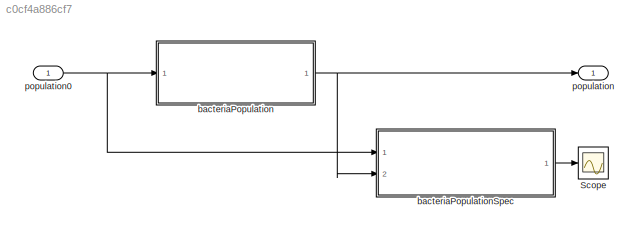
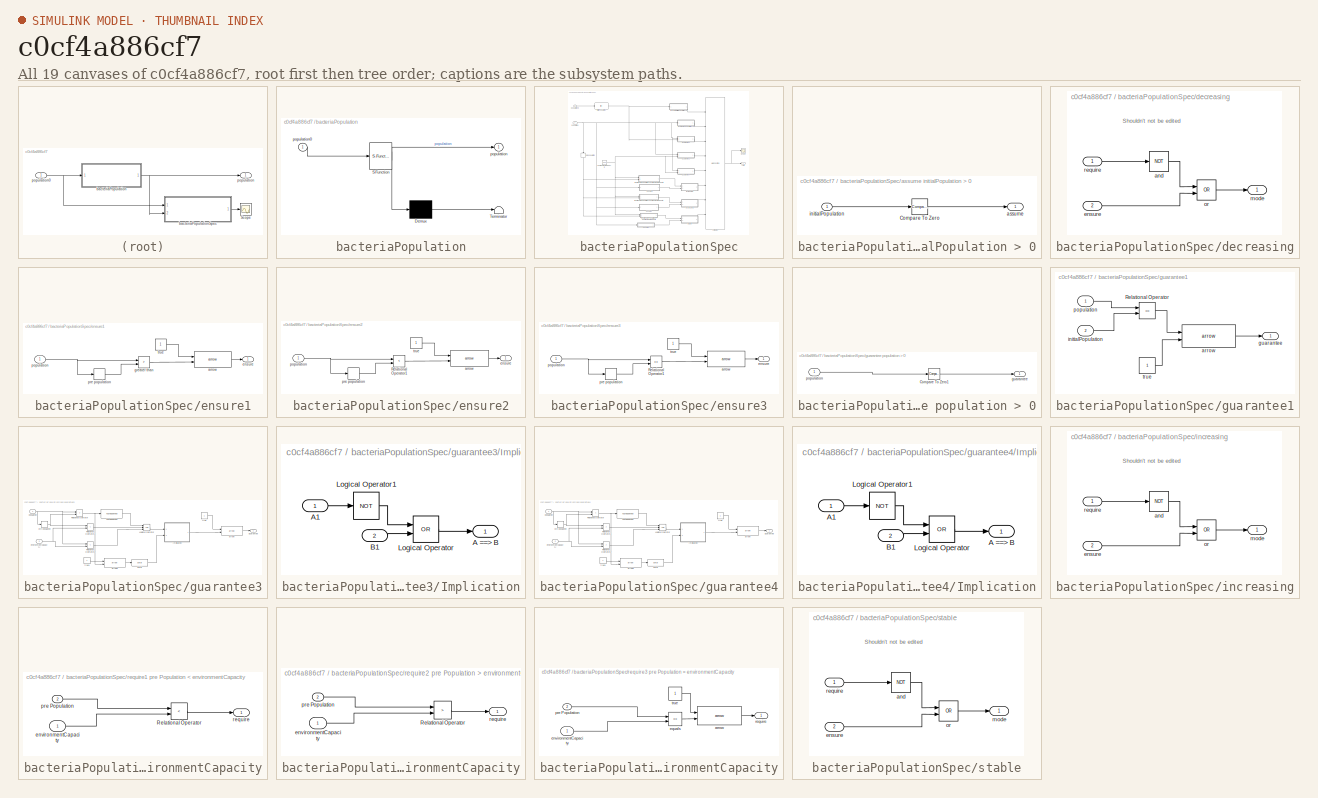
[diagram: thumbnail index - all 19 canvases of the model, root first then tree order]
MODEL slx_c0cf4a886cf7
KIND model
CONFIG AbsTol = auto
CONFIG EnableMultiTasking = off
CONFIG FixedStep = 1
CONFIG MaxStep = auto
CONFIG MinStep = auto
CONFIG RelTol = 1e-3
CONFIG SampleTimeConstraint = Unconstrained
CONFIG Solver = FixedStepDiscrete
CONFIG SolverName = FixedStepDiscrete
CONFIG StartTime = 0.0
CONFIG StopTime = 10.0
WORKSPACE source: MAT-file member
WORKSPACE MCOS: class17 (value not decoded)
BLOCK [Scope] Scope
  NumInputPorts = 1
  Ports = [1]
  ScopeSpecificationString = C++SS(StrPVP('Open','off'),StrPVP('TimeRange','auto'),StrPVP('TickLabels','OneTimeTick'),StrPVP('ShowLegends','off'),StrPVP('LimitDataPoints','off'),StrPVP('MaxDataPoints','5000'),StrPVP('SaveToWorkspace','off'),StrPVP('SaveName','ScopeData1'),StrPVP('YMin','0.9'),StrPVP('YMax','1.1'),StrPVP('BlockParamSampleInput','off'),StrPVP('BlockParamSampleTime','-1'),StrPVP('ZoomMode','on'),StrPVP('Grid','o...<+623ch>
BLOCK [SubSystem] bacteriaPopulation
  ErrorFcn = Stateflow.Translate.translate
  PermitHierarchicalResolution = ExplicitOnly
  Ports = [1, 1]
  RequestExecContextInheritance = off
  SFBlockType = Chart
  TreatAsAtomicUnit = on
  Variant = off
BLOCK [Demux] bacteriaPopulation/ Demux 
  Outputs = 1
  Ports = [1, 1]
BLOCK [S-Function] bacteriaPopulation/ SFunction 
  EnableBusSupport = on
  FunctionName = sf_sfun
  PortCounts = [1 2]
  Ports = [1, 2]
  SFcnIsStateOwnerBlock = off
  SFunctionDeploymentMode = off
  Tag = Stateflow S-Function truthTable1 3
BLOCK [Terminator] bacteriaPopulation/ Terminator 
BLOCK [Outport] bacteriaPopulation/population
  IconDisplay = Port number
BLOCK [Inport] bacteriaPopulation/population0
  IconDisplay = Port number
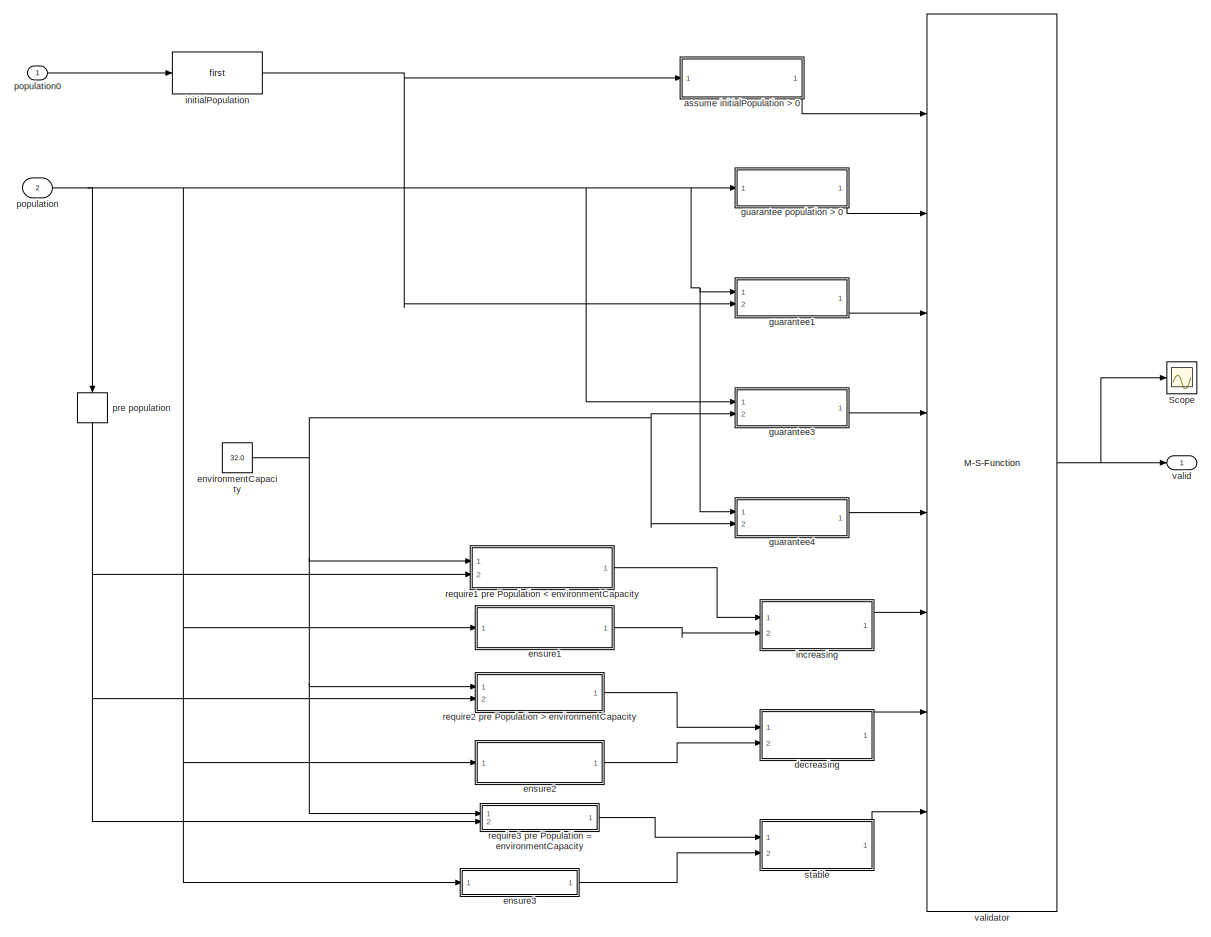
[diagram: bacteriaPopulationSpec - part 1/1, most of the canvas]
BLOCK [SubSystem] bacteriaPopulationSpec
  Ports = [2, 1]
  RequestExecContextInheritance = off
  Variant = off
BLOCK [Scope] bacteriaPopulationSpec/Scope
  NumInputPorts = 1
  Ports = [1]
  ScopeSpecificationString = C++SS(StrPVP('Open','off'),StrPVP('TimeRange','auto'),StrPVP('TickLabels','OneTimeTick'),StrPVP('ShowLegends','off'),StrPVP('LimitDataPoints','off'),StrPVP('MaxDataPoints','5000'),StrPVP('SaveToWorkspace','off'),StrPVP('SaveName','ScopeData1'),StrPVP('YMin','-10'),StrPVP('YMax','10'),StrPVP('BlockParamSampleInput','off'),StrPVP('BlockParamSampleTime','-1'),StrPVP('ZoomMode','on'),StrPVP('Grid','on...<+571ch>
BLOCK [SubSystem] bacteriaPopulationSpec/assume initialPopulation > 0
  Ports = [1, 1]
  RequestExecContextInheritance = off
  Variant = off
BLOCK [Reference] bacteriaPopulationSpec/assume initialPopulation > 0/Compare To Zero  REF=simulink/Logic and Bit
Operations/Compare
To Zero
  Ports = [1, 1]
  SourceBlock = simulink/Logic and Bit\nOperations/Compare\nTo Zero
  SourceProductBaseCode = SL
  SourceProductName = Simulink
  SourceType = Compare To Zero
BLOCK [Outport] bacteriaPopulationSpec/assume initialPopulation > 0/assume
  IconDisplay = Port number
  OutDataTypeStr = boolean
BLOCK [Inport] bacteriaPopulationSpec/assume initialPopulation > 0/initialPopulation
  IconDisplay = Port number
BLOCK [SubSystem] bacteriaPopulationSpec/decreasing
  Ports = [2, 1]
  RequestExecContextInheritance = off
  Variant = off
BLOCK [Logic] bacteriaPopulationSpec/decreasing/and
  AllPortsSameDT = off
  IconShape = distinctive
  Operator = NOT
  OutDataTypeStr = boolean
  Ports = [1, 1]
BLOCK [Inport] bacteriaPopulationSpec/decreasing/ensure
  IconDisplay = Port number
  OutDataTypeStr = boolean
  Port = 2
BLOCK [Outport] bacteriaPopulationSpec/decreasing/mode
  IconDisplay = Port number
BLOCK [Logic] bacteriaPopulationSpec/decreasing/or
  AllPortsSameDT = off
  IconShape = distinctive
  Operator = OR
  OutDataTypeStr = boolean
  Ports = [2, 1]
BLOCK [Inport] bacteriaPopulationSpec/decreasing/require
  IconDisplay = Port number
  OutDataTypeStr = boolean
BLOCK [SubSystem] bacteriaPopulationSpec/ensure1
  Ports = [1, 1]
  RequestExecContextInheritance = off
  Variant = off
BLOCK [Reference] bacteriaPopulationSpec/ensure1/arrow  REF=Kind/arrow
  Ports = [2, 1]
  SourceBlock = Kind/arrow
BLOCK [Outport] bacteriaPopulationSpec/ensure1/ensure
  IconDisplay = Port number
  OutDataTypeStr = boolean
BLOCK [RelationalOperator] bacteriaPopulationSpec/ensure1/greater than
  InputSameDT = off
  Operator = >
  OutDataTypeStr = boolean
  Ports = [2, 1]
BLOCK [Inport] bacteriaPopulationSpec/ensure1/population
  IconDisplay = Port number
BLOCK [Memory] bacteriaPopulationSpec/ensure1/pre population
BLOCK [Constant] bacteriaPopulationSpec/ensure1/true
  OutDataTypeStr = boolean
BLOCK [SubSystem] bacteriaPopulationSpec/ensure2
  Ports = [1, 1]
  RequestExecContextInheritance = off
  Variant = off
BLOCK [RelationalOperator] bacteriaPopulationSpec/ensure2/Relational Operator1
  InputSameDT = off
  Operator = <
  OutDataTypeStr = boolean
  Ports = [2, 1]
BLOCK [Reference] bacteriaPopulationSpec/ensure2/arrow  REF=Kind/arrow
  Ports = [2, 1]
  SourceBlock = Kind/arrow
BLOCK [Outport] bacteriaPopulationSpec/ensure2/ensure
  IconDisplay = Port number
  OutDataTypeStr = boolean
BLOCK [Inport] bacteriaPopulationSpec/ensure2/population
  IconDisplay = Port number
BLOCK [Memory] bacteriaPopulationSpec/ensure2/pre population
BLOCK [Constant] bacteriaPopulationSpec/ensure2/true
  OutDataTypeStr = boolean
BLOCK [SubSystem] bacteriaPopulationSpec/ensure3
  Ports = [1, 1]
  RequestExecContextInheritance = off
  Variant = off
BLOCK [RelationalOperator] bacteriaPopulationSpec/ensure3/Relational Operator1
  InputSameDT = off
  Operator = ==
  OutDataTypeStr = boolean
  Ports = [2, 1]
BLOCK [Reference] bacteriaPopulationSpec/ensure3/arrow  REF=Kind/arrow
  Ports = [2, 1]
  SourceBlock = Kind/arrow
BLOCK [Outport] bacteriaPopulationSpec/ensure3/ensure
  IconDisplay = Port number
  OutDataTypeStr = boolean
BLOCK [Inport] bacteriaPopulationSpec/ensure3/population
  IconDisplay = Port number
BLOCK [Memory] bacteriaPopulationSpec/ensure3/pre population
BLOCK [Constant] bacteriaPopulationSpec/ensure3/true
  OutDataTypeStr = boolean
BLOCK [Constant] bacteriaPopulationSpec/environmentCapacity
  OutDataTypeStr = double
  Value = 32.0
BLOCK [SubSystem] bacteriaPopulationSpec/guarantee population > 0
  Ports = [1, 1]
  RequestExecContextInheritance = off
  Variant = off
BLOCK [Reference] bacteriaPopulationSpec/guarantee population > 0/Compare To Zero1  REF=simulink/Logic and Bit
Operations/Compare
To Zero
  Ports = [1, 1]
  SourceBlock = simulink/Logic and Bit\nOperations/Compare\nTo Zero
  SourceProductBaseCode = SL
  SourceProductName = Simulink
  SourceType = Compare To Zero
BLOCK [Outport] bacteriaPopulationSpec/guarantee population > 0/guarantee
  IconDisplay = Port number
  OutDataTypeStr = boolean
BLOCK [Inport] bacteriaPopulationSpec/guarantee population > 0/population
  IconDisplay = Port number
BLOCK [SubSystem] bacteriaPopulationSpec/guarantee1
  Ports = [2, 1]
  RequestExecContextInheritance = off
  Variant = off
BLOCK [RelationalOperator] bacteriaPopulationSpec/guarantee1/Relational Operator
  InputSameDT = off
  Operator = ==
  OutDataTypeStr = boolean
  Ports = [2, 1]
BLOCK [Reference] bacteriaPopulationSpec/guarantee1/arrow  REF=Kind/arrow
  Ports = [2, 1]
  SourceBlock = Kind/arrow
BLOCK [Outport] bacteriaPopulationSpec/guarantee1/guarantee
  IconDisplay = Port number
  OutDataTypeStr = boolean
BLOCK [Inport] bacteriaPopulationSpec/guarantee1/initialPopulation
  IconDisplay = Port number
  Port = 2
BLOCK [Inport] bacteriaPopulationSpec/guarantee1/population
  IconDisplay = Port number
BLOCK [Constant] bacteriaPopulationSpec/guarantee1/true
  OutDataTypeStr = boolean
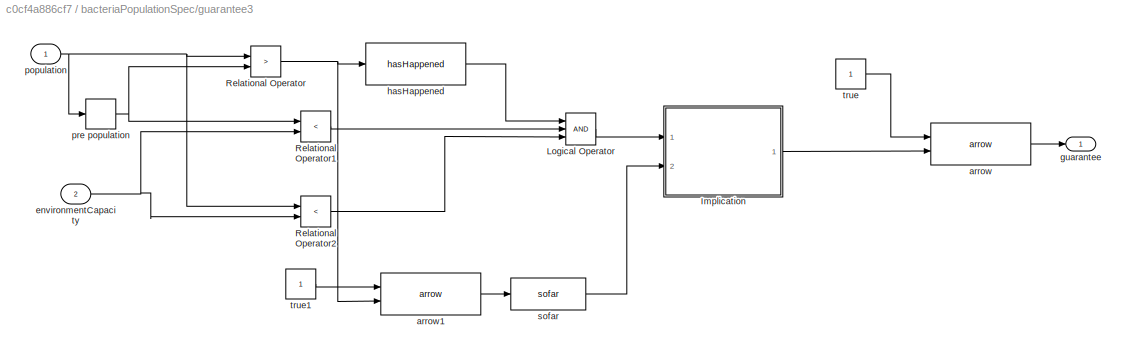
BLOCK [SubSystem] bacteriaPopulationSpec/guarantee3
  Ports = [2, 1]
  RequestExecContextInheritance = off
  Variant = off
BLOCK [SubSystem] bacteriaPopulationSpec/guarantee3/Implication
  Ports = [2, 1]
  RequestExecContextInheritance = off
  Variant = off
BLOCK [Outport] bacteriaPopulationSpec/guarantee3/Implication/A ==> B
  IconDisplay = Port number
BLOCK [Inport] bacteriaPopulationSpec/guarantee3/Implication/A1
  IconDisplay = Port number
BLOCK [Inport] bacteriaPopulationSpec/guarantee3/Implication/B1
  IconDisplay = Port number
  Port = 2
BLOCK [Logic] bacteriaPopulationSpec/guarantee3/Implication/Logical Operator
  AllPortsSameDT = off
  Operator = OR
  OutDataTypeStr = boolean
  Ports = [2, 1]
BLOCK [Logic] bacteriaPopulationSpec/guarantee3/Implication/Logical Operator1
  AllPortsSameDT = off
  Operator = NOT
  OutDataTypeStr = boolean
  Ports = [1, 1]
BLOCK [Logic] bacteriaPopulationSpec/guarantee3/Logical Operator
  AllPortsSameDT = off
  Inputs = 3
  OutDataTypeStr = boolean
  Ports = [3, 1]
BLOCK [RelationalOperator] bacteriaPopulationSpec/guarantee3/Relational Operator
  InputSameDT = off
  Operator = >
  OutDataTypeStr = boolean
  Ports = [2, 1]
BLOCK [RelationalOperator] bacteriaPopulationSpec/guarantee3/Relational Operator1
  InputSameDT = off
  Operator = <
  OutDataTypeStr = boolean
  Ports = [2, 1]
BLOCK [RelationalOperator] bacteriaPopulationSpec/guarantee3/Relational Operator2
  InputSameDT = off
  Operator = <
  OutDataTypeStr = boolean
  Ports = [2, 1]
BLOCK [Reference] bacteriaPopulationSpec/guarantee3/arrow  REF=Kind/arrow
  Ports = [2, 1]
  SourceBlock = Kind/arrow
BLOCK [Reference] bacteriaPopulationSpec/guarantee3/arrow1  REF=Kind/arrow
  Ports = [2, 1]
  SourceBlock = Kind/arrow
BLOCK [Inport] bacteriaPopulationSpec/guarantee3/environmentCapacity
  IconDisplay = Port number
  Port = 2
BLOCK [Outport] bacteriaPopulationSpec/guarantee3/guarantee
  IconDisplay = Port number
  OutDataTypeStr = boolean
BLOCK [Reference] bacteriaPopulationSpec/guarantee3/hasHappened  REF=Kind/hasHappened
  Ports = [1, 1]
  SourceBlock = Kind/hasHappened
BLOCK [Inport] bacteriaPopulationSpec/guarantee3/population
  IconDisplay = Port number
BLOCK [Memory] bacteriaPopulationSpec/guarantee3/pre population
BLOCK [Reference] bacteriaPopulationSpec/guarantee3/sofar  REF=Kind/sofar
  Ports = [1, 1]
  SourceBlock = Kind/sofar
BLOCK [Constant] bacteriaPopulationSpec/guarantee3/true
  OutDataTypeStr = boolean
BLOCK [Constant] bacteriaPopulationSpec/guarantee3/true1
  OutDataTypeStr = boolean
BLOCK [SubSystem] bacteriaPopulationSpec/guarantee4
  Ports = [2, 1]
  RequestExecContextInheritance = off
  Variant = off
BLOCK [SubSystem] bacteriaPopulationSpec/guarantee4/Implication
  Ports = [2, 1]
  RequestExecContextInheritance = off
  Variant = off
BLOCK [Outport] bacteriaPopulationSpec/guarantee4/Implication/A ==> B
  IconDisplay = Port number
BLOCK [Inport] bacteriaPopulationSpec/guarantee4/Implication/A1
  IconDisplay = Port number
BLOCK [Inport] bacteriaPopulationSpec/guarantee4/Implication/B1
  IconDisplay = Port number
  Port = 2
BLOCK [Logic] bacteriaPopulationSpec/guarantee4/Implication/Logical Operator
  AllPortsSameDT = off
  Operator = OR
  OutDataTypeStr = boolean
  Ports = [2, 1]
BLOCK [Logic] bacteriaPopulationSpec/guarantee4/Implication/Logical Operator1
  AllPortsSameDT = off
  Operator = NOT
  OutDataTypeStr = boolean
  Ports = [1, 1]
BLOCK [Logic] bacteriaPopulationSpec/guarantee4/Logical Operator
  AllPortsSameDT = off
  Inputs = 3
  OutDataTypeStr = boolean
  Ports = [3, 1]
BLOCK [RelationalOperator] bacteriaPopulationSpec/guarantee4/Relational Operator
  InputSameDT = off
  Operator = <
  OutDataTypeStr = boolean
  Ports = [2, 1]
BLOCK [RelationalOperator] bacteriaPopulationSpec/guarantee4/Relational Operator1
  InputSameDT = off
  Operator = >
  OutDataTypeStr = boolean
  Ports = [2, 1]
BLOCK [RelationalOperator] bacteriaPopulationSpec/guarantee4/Relational Operator2
  InputSameDT = off
  Operator = >
  OutDataTypeStr = boolean
  Ports = [2, 1]
BLOCK [Reference] bacteriaPopulationSpec/guarantee4/arrow  REF=Kind/arrow
  Ports = [2, 1]
  SourceBlock = Kind/arrow
BLOCK [Reference] bacteriaPopulationSpec/guarantee4/arrow1  REF=Kind/arrow
  Ports = [2, 1]
  SourceBlock = Kind/arrow
BLOCK [Inport] bacteriaPopulationSpec/guarantee4/environmentCapacity
  IconDisplay = Port number
  Port = 2
BLOCK [Outport] bacteriaPopulationSpec/guarantee4/guarantee
  IconDisplay = Port number
  OutDataTypeStr = boolean
BLOCK [Reference] bacteriaPopulationSpec/guarantee4/hasHappened  REF=Kind/hasHappened
  Ports = [1, 1]
  SourceBlock = Kind/hasHappened
BLOCK [Inport] bacteriaPopulationSpec/guarantee4/population
  IconDisplay = Port number
BLOCK [Memory] bacteriaPopulationSpec/guarantee4/pre population
BLOCK [Reference] bacteriaPopulationSpec/guarantee4/sofar  REF=Kind/sofar
  Ports = [1, 1]
  SourceBlock = Kind/sofar
BLOCK [Constant] bacteriaPopulationSpec/guarantee4/true
  OutDataTypeStr = boolean
BLOCK [Constant] bacteriaPopulationSpec/guarantee4/true1
  OutDataTypeStr = boolean
BLOCK [SubSystem] bacteriaPopulationSpec/increasing
  Ports = [2, 1]
  RequestExecContextInheritance = off
  Variant = off
BLOCK [Logic] bacteriaPopulationSpec/increasing/and
  AllPortsSameDT = off
  IconShape = distinctive
  Operator = NOT
  OutDataTypeStr = boolean
  Ports = [1, 1]
BLOCK [Inport] bacteriaPopulationSpec/increasing/ensure
  IconDisplay = Port number
  OutDataTypeStr = boolean
  Port = 2
BLOCK [Outport] bacteriaPopulationSpec/increasing/mode
  IconDisplay = Port number
BLOCK [Logic] bacteriaPopulationSpec/increasing/or
  AllPortsSameDT = off
  IconShape = distinctive
  Operator = OR
  OutDataTypeStr = boolean
  Ports = [2, 1]
BLOCK [Inport] bacteriaPopulationSpec/increasing/require
  IconDisplay = Port number
  OutDataTypeStr = boolean
BLOCK [Reference] bacteriaPopulationSpec/initialPopulation  REF=Kind/first
  Ports = [1, 1]
  SourceBlock = Kind/first
BLOCK [Inport] bacteriaPopulationSpec/population
  IconDisplay = Port number
  Port = 2
BLOCK [Inport] bacteriaPopulationSpec/population0
  IconDisplay = Port number
BLOCK [Memory] bacteriaPopulationSpec/pre population
BLOCK [SubSystem] bacteriaPopulationSpec/require1 pre Population < environmentCapacity
  Ports = [2, 1]
  RequestExecContextInheritance = off
  Variant = off
BLOCK [RelationalOperator] bacteriaPopulationSpec/require1 pre Population < environmentCapacity/Relational Operator
  InputSameDT = off
  Operator = <
  OutDataTypeStr = boolean
  Ports = [2, 1]
BLOCK [Inport] bacteriaPopulationSpec/require1 pre Population < environmentCapacity/environmentCapacity
  IconDisplay = Port number
BLOCK [Inport] bacteriaPopulationSpec/require1 pre Population < environmentCapacity/pre Population
  IconDisplay = Port number
  Port = 2
BLOCK [Outport] bacteriaPopulationSpec/require1 pre Population < environmentCapacity/require
  IconDisplay = Port number
  OutDataTypeStr = boolean
BLOCK [SubSystem] bacteriaPopulationSpec/require2 pre Population > environmentCapacity
  Ports = [2, 1]
  RequestExecContextInheritance = off
  Variant = off
BLOCK [RelationalOperator] bacteriaPopulationSpec/require2 pre Population > environmentCapacity/Relational Operator
  InputSameDT = off
  Operator = >
  OutDataTypeStr = boolean
  Ports = [2, 1]
BLOCK [Inport] bacteriaPopulationSpec/require2 pre Population > environmentCapacity/environmentCapacity
  IconDisplay = Port number
BLOCK [Inport] bacteriaPopulationSpec/require2 pre Population > environmentCapacity/pre Population
  IconDisplay = Port number
  Port = 2
BLOCK [Outport] bacteriaPopulationSpec/require2 pre Population > environmentCapacity/require
  IconDisplay = Port number
  OutDataTypeStr = boolean
BLOCK [SubSystem] bacteriaPopulationSpec/require3 pre Population = environmentCapacity
  Ports = [2, 1]
  RequestExecContextInheritance = off
  Variant = off
BLOCK [Reference] bacteriaPopulationSpec/require3 pre Population = environmentCapacity/arrow  REF=Kind/arrow
  Ports = [2, 1]
  SourceBlock = Kind/arrow
BLOCK [Inport] bacteriaPopulationSpec/require3 pre Population = environmentCapacity/environmentCapacity
  IconDisplay = Port number
BLOCK [RelationalOperator] bacteriaPopulationSpec/require3 pre Population = environmentCapacity/equals
  InputSameDT = off
  Operator = ==
  OutDataTypeStr = boolean
  Ports = [2, 1]
BLOCK [Inport] bacteriaPopulationSpec/require3 pre Population = environmentCapacity/pre Population
  IconDisplay = Port number
  Port = 2
BLOCK [Outport] bacteriaPopulationSpec/require3 pre Population = environmentCapacity/require
  IconDisplay = Port number
  OutDataTypeStr = boolean
BLOCK [Constant] bacteriaPopulationSpec/require3 pre Population = environmentCapacity/true
  OutDataTypeStr = boolean
BLOCK [SubSystem] bacteriaPopulationSpec/stable
  Ports = [2, 1]
  RequestExecContextInheritance = off
  Variant = off
BLOCK [Logic] bacteriaPopulationSpec/stable/and
  AllPortsSameDT = off
  IconShape = distinctive
  Operator = NOT
  OutDataTypeStr = boolean
  Ports = [1, 1]
BLOCK [Inport] bacteriaPopulationSpec/stable/ensure
  IconDisplay = Port number
  OutDataTypeStr = boolean
  Port = 2
BLOCK [Outport] bacteriaPopulationSpec/stable/mode
  IconDisplay = Port number
BLOCK [Logic] bacteriaPopulationSpec/stable/or
  AllPortsSameDT = off
  IconShape = distinctive
  Operator = OR
  OutDataTypeStr = boolean
  Ports = [2, 1]
BLOCK [Inport] bacteriaPopulationSpec/stable/require
  IconDisplay = Port number
  OutDataTypeStr = boolean
BLOCK [Outport] bacteriaPopulationSpec/valid
  IconDisplay = Port number
BLOCK [M-S-Function] bacteriaPopulationSpec/validator
  FunctionName = contract
  InitFcn = contractBeforeSimulation();
  LoadFcn = saveValidatorParameters(gcb);
  Ports = [8, 1]
  StopFcn = contractAfterSimulation();
BLOCK [Outport] population
  IconDisplay = Port number
BLOCK [Inport] population0
  IconDisplay = Port number
ANNOTATION bacteriaPopulationSpec/decreasing: Shouldn't not be edited
ANNOTATION bacteriaPopulationSpec/increasing: Shouldn't not be edited
ANNOTATION bacteriaPopulationSpec/stable: Shouldn't not be edited
NET bacteriaPopulation:1 -> bacteriaPopulationSpec:2, population:1
LINE bacteriaPopulationSpec:1 -> Scope:1
NET population0:1 -> bacteriaPopulation:1, bacteriaPopulationSpec:1
note: NET lines group one-source signal fan-out (src -> all destinations, sorted); 1:1 wires keep LINE
CHART bacteriaPopulation states=3 transitions=4
  STATE_LABEL '[x1, y1] =update(x,y)'
  STATE_LABEL 'SCRIPT:\nfunction [x1, y1] =update(x,y)\n\naVarTruthTableCondition_1 = false;\naVarTruthTableCondition_2 = false;\naVarTruthTableCondition_3 = false;\n\n\n% increasing\n\naVarTruthTableCondition_1 = logical(y < 32.0);\n\n% decreasing\n\naVarTruthTableCondition_2 = logical(y > 32.0);\n\n% stable\n\naVarTruthTableCondition_3 = logical(y == 32.0);\n\nif (aVarTruthTableCondition_1 && ~aVarTruthTableCondition_2 && ~aVarTr...<+423ch>'
  STATE_LABEL 'start\nentry:\nprePopulation = population0;\npopulation = population0;\n'
  STATE_LABEL 'state\nentry:\n[prePopulation, population] = update(prePopulation, population);\n'
